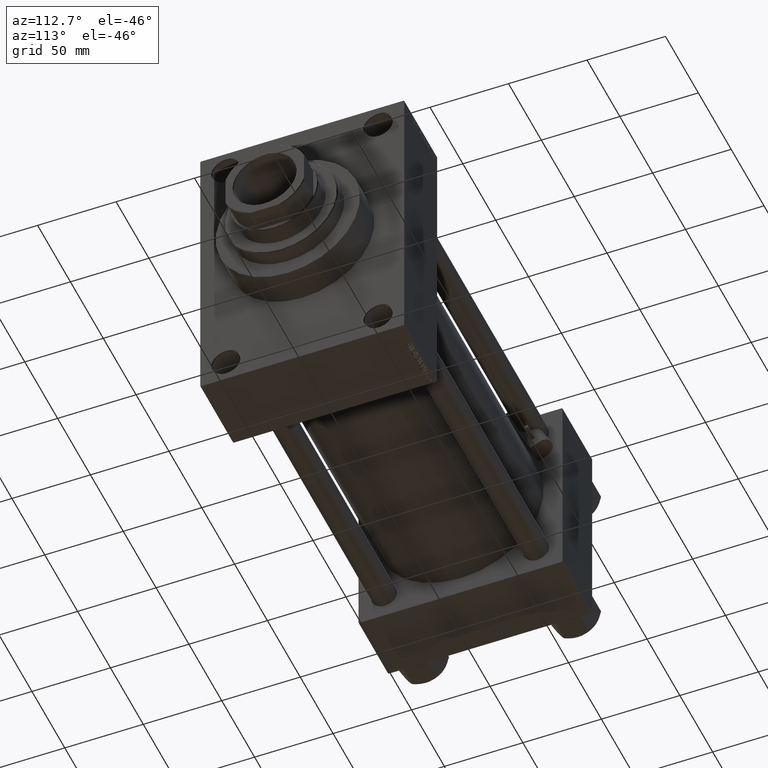
[diagram: clean part render]
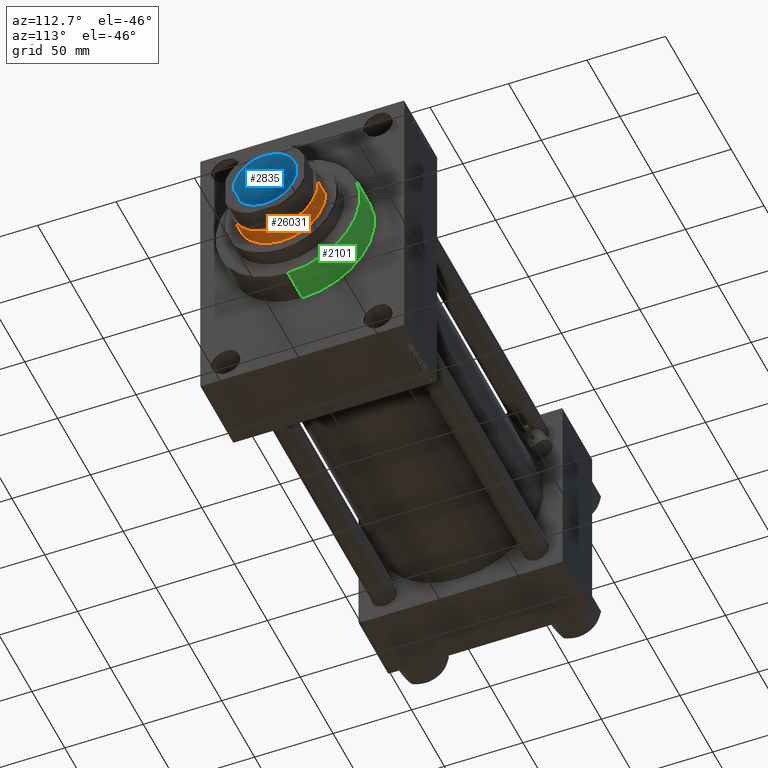
[diagram: same view with three faces highlighted in distinct colors, each labeled with its STEP entity id]
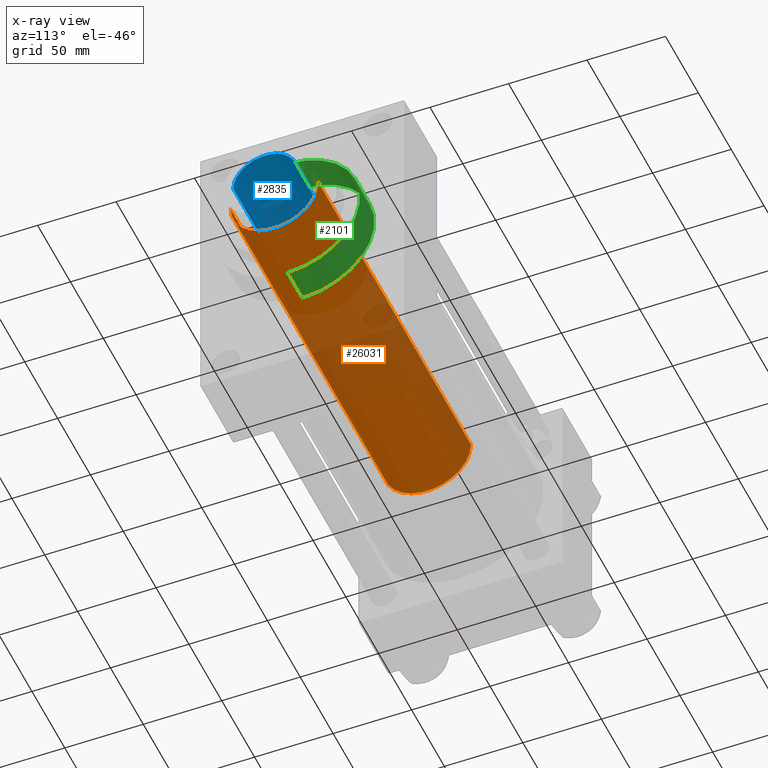
[diagram: x-ray of the same camera — body ghosted, the three highlighted faces saturated]
A machine part, auxiliary view with three faces highlighted in distinct colors.
The next image is the same camera in x-ray (body ghosted, the three faces saturated) — at least one of them is partly hidden behind the body in this view.
Their STEP definitions:

[orange] entity #26031 — the highlighted cylindrical surface (partial cylindrical patch) has radius 28 mm, axis along (-1, 0, 0).
#1910 = DIRECTION ( 'NONE',  ( 0.000000000000000000, 0.000000000000000000, -1.000000000000000000 ) ) ;
#2697 = AXIS2_PLACEMENT_3D ( 'NONE', #24136, #1910, #32269 ) ;
#4137 = EDGE_LOOP ( 'NONE', ( #16274, #10148, #30165, #12794 ) ) ;
#4336 = CARTESIAN_POINT ( 'NONE',  ( -28.00000000000000000, 0.000000000000000000, 284.0000000000000568 ) ) ;
#5909 = CIRCLE ( 'NONE', #45358, 28.00000000000000000 ) ;
#7107 = VECTOR ( 'NONE', #16470, 1000.000000000000000 ) ;
#7944 = DIRECTION ( 'NONE',  ( -1.000000000000000000, 0.000000000000000000, 0.000000000000000000 ) ) ;
#8530 = CARTESIAN_POINT ( 'NONE',  ( 0.000000000000000000, 0.000000000000000000, 51.00000000000000000 ) ) ;
#8579 = LINE ( 'NONE', #19921, #7107 ) ;
#10148 = ORIENTED_EDGE ( 'NONE', *, *, #31953, .T. ) ;
#10810 = CARTESIAN_POINT ( 'NONE',  ( -28.00000000000000000, 0.000000000000000000, 283.5000000000000568 ) ) ;
#12794 = ORIENTED_EDGE ( 'NONE', *, *, #26909, .F. ) ;
#13204 = DIRECTION ( 'NONE',  ( 0.000000000000000000, 0.000000000000000000, 1.000000000000000000 ) ) ;
#13517 = EDGE_CURVE ( 'NONE', #30155, #16124, #23163, .T. ) ;
#15830 = CARTESIAN_POINT ( 'NONE',  ( 28.00000000000000000, 3.429011037612589276E-15, 283.5000000000000568 ) ) ;
#16124 = VERTEX_POINT ( 'NONE', #15830 ) ;
#16274 = ORIENTED_EDGE ( 'NONE', *, *, #13517, .T. ) ;
#16470 = DIRECTION ( 'NONE',  ( -0.000000000000000000, -0.000000000000000000, -1.000000000000000000 ) ) ;
#19921 = CARTESIAN_POINT ( 'NONE',  ( 28.00000000000000000, 3.429011037612589276E-15, 284.0000000000000568 ) ) ;
#23163 = CIRCLE ( 'NONE', #2697, 28.00000000000000000 ) ;
#24136 = CARTESIAN_POINT ( 'NONE',  ( 0.000000000000000000, 0.000000000000000000, 283.5000000000000568 ) ) ;
#26031 = ADVANCED_FACE ( 'NONE', ( #33879 ), #26479, .T. ) ;
#26479 = CYLINDRICAL_SURFACE ( 'NONE', #37670, 28.00000000000000000 ) ;
#26909 = EDGE_CURVE ( 'NONE', #30155, #37064, #38165, .T. ) ;
#26967 = CARTESIAN_POINT ( 'NONE',  ( 0.000000000000000000, 0.000000000000000000, 284.0000000000000568 ) ) ;
#29810 = VECTOR ( 'NONE', #48790, 1000.000000000000000 ) ;
#29917 = CARTESIAN_POINT ( 'NONE',  ( 28.00000000000000000, 3.429011037612589276E-15, 51.00000000000000000 ) ) ;
#30155 = VERTEX_POINT ( 'NONE', #10810 ) ;
#30165 = ORIENTED_EDGE ( 'NONE', *, *, #46681, .T. ) ;
#31953 = EDGE_CURVE ( 'NONE', #16124, #34717, #8579, .T. ) ;
#32269 = DIRECTION ( 'NONE',  ( 1.000000000000000000, 0.000000000000000000, 0.000000000000000000 ) ) ;
#32311 = CARTESIAN_POINT ( 'NONE',  ( -28.00000000000000000, 0.000000000000000000, 51.00000000000000000 ) ) ;
#33879 = FACE_OUTER_BOUND ( 'NONE', #4137, .T. ) ;
#34717 = VERTEX_POINT ( 'NONE', #29917 ) ;
#37064 = VERTEX_POINT ( 'NONE', #32311 ) ;
#37670 = AXIS2_PLACEMENT_3D ( 'NONE', #26967, #45730, #7944 ) ;
#38165 = LINE ( 'NONE', #4336, #29810 ) ;
#42835 = DIRECTION ( 'NONE',  ( 1.000000000000000000, 0.000000000000000000, 0.000000000000000000 ) ) ;
#45358 = AXIS2_PLACEMENT_3D ( 'NONE', #8530, #13204, #42835 ) ;
#45730 = DIRECTION ( 'NONE',  ( -0.000000000000000000, -0.000000000000000000, -1.000000000000000000 ) ) ;
#46681 = EDGE_CURVE ( 'NONE', #34717, #37064, #5909, .T. ) ;
#48790 = DIRECTION ( 'NONE',  ( -0.000000000000000000, -0.000000000000000000, -1.000000000000000000 ) ) ;

[blue] entity #2835 — the highlighted cylindrical surface (edge-blend (fillet) strip) has radius 20.25 mm, axis along (1, 0, 0).
#161 = VERTEX_POINT ( 'NONE', #38920 ) ;
#208 = AXIS2_PLACEMENT_3D ( 'NONE', #3826, #7780, #15440 ) ;
#568 = AXIS2_PLACEMENT_3D ( 'NONE', #9095, #34785, #34544 ) ;
#1746 = CARTESIAN_POINT ( 'NONE',  ( -20.24999999999998934, 2.479909768273389117E-15, 237.0000000000000568 ) ) ;
#2835 = ADVANCED_FACE ( 'NONE', ( #45031 ), #26035, .F. ) ;
#3339 = CIRCLE ( 'NONE', #208, 20.24999999999998934 ) ;
#3826 = CARTESIAN_POINT ( 'NONE',  ( 0.000000000000000000, 0.000000000000000000, 237.0000000000000568 ) ) ;
#5798 = VECTOR ( 'NONE', #31310, 1000.000000000000000 ) ;
#7780 = DIRECTION ( 'NONE',  ( -0.000000000000000000, -0.000000000000000000, 1.000000000000000000 ) ) ;
#9095 = CARTESIAN_POINT ( 'NONE',  ( 0.000000000000000000, 0.000000000000000000, 297.7000000000000455 ) ) ;
#10226 = VERTEX_POINT ( 'NONE', #39511 ) ;
#11419 = DIRECTION ( 'NONE',  ( -0.000000000000000000, -0.000000000000000000, 1.000000000000000000 ) ) ;
#12204 = EDGE_CURVE ( 'NONE', #16237, #28230, #30179, .T. ) ;
#12240 = ORIENTED_EDGE ( 'NONE', *, *, #13386, .F. ) ;
#12772 = CARTESIAN_POINT ( 'NONE',  ( 20.24999999999999289, 0.000000000000000000, 298.0000000000000568 ) ) ;
#13386 = EDGE_CURVE ( 'NONE', #10226, #161, #34274, .T. ) ;
#15440 = DIRECTION ( 'NONE',  ( 1.000000000000000000, 0.000000000000000000, 0.000000000000000000 ) ) ;
#16237 = VERTEX_POINT ( 'NONE', #1746 ) ;
#16852 = CARTESIAN_POINT ( 'NONE',  ( -20.24999999999999289, 2.479909768273389511E-15, 297.7000000000000455 ) ) ;
#16868 = AXIS2_PLACEMENT_3D ( 'NONE', #29979, #45286, #38116 ) ;
#18562 = ORIENTED_EDGE ( 'NONE', *, *, #12204, .T. ) ;
#24247 = CIRCLE ( 'NONE', #568, 20.24999999999999289 ) ;
#25199 = EDGE_CURVE ( 'NONE', #28230, #161, #24247, .T. ) ;
#25437 = ORIENTED_EDGE ( 'NONE', *, *, #25199, .T. ) ;
#26035 = CYLINDRICAL_SURFACE ( 'NONE', #16868, 20.24999999999999289 ) ;
#28230 = VERTEX_POINT ( 'NONE', #16852 ) ;
#29979 = CARTESIAN_POINT ( 'NONE',  ( 0.000000000000000000, 0.000000000000000000, 298.0000000000000568 ) ) ;
#30179 = LINE ( 'NONE', #45246, #48357 ) ;
#31310 = DIRECTION ( 'NONE',  ( -0.000000000000000000, -0.000000000000000000, 1.000000000000000000 ) ) ;
#32534 = EDGE_LOOP ( 'NONE', ( #36502, #18562, #25437, #12240 ) ) ;
#34274 = LINE ( 'NONE', #12772, #5798 ) ;
#34544 = DIRECTION ( 'NONE',  ( 1.000000000000000000, 0.000000000000000000, 0.000000000000000000 ) ) ;
#34785 = DIRECTION ( 'NONE',  ( 0.000000000000000000, 0.000000000000000000, 1.000000000000000000 ) ) ;
#36502 = ORIENTED_EDGE ( 'NONE', *, *, #40695, .F. ) ;
#38116 = DIRECTION ( 'NONE',  ( 1.000000000000000000, 0.000000000000000000, 0.000000000000000000 ) ) ;
#38920 = CARTESIAN_POINT ( 'NONE',  ( 20.24999999999999289, 0.000000000000000000, 297.7000000000000455 ) ) ;
#39511 = CARTESIAN_POINT ( 'NONE',  ( 20.24999999999998934, 0.000000000000000000, 237.0000000000000568 ) ) ;
#40695 = EDGE_CURVE ( 'NONE', #16237, #10226, #3339, .T. ) ;
#45031 = FACE_OUTER_BOUND ( 'NONE', #32534, .T. ) ;
#45246 = CARTESIAN_POINT ( 'NONE',  ( -20.24999999999999289, 2.479909768273389511E-15, 298.0000000000000568 ) ) ;
#45286 = DIRECTION ( 'NONE',  ( -0.000000000000000000, -0.000000000000000000, 1.000000000000000000 ) ) ;
#48357 = VECTOR ( 'NONE', #11419, 1000.000000000000000 ) ;

[green] entity #2101 — the highlighted cylindrical surface (partial cylindrical patch) has radius 46 mm, axis along (-1, -0, -0).
#37 = VERTEX_POINT ( 'NONE', #6435 ) ;
#2101 = ADVANCED_FACE ( 'NONE', ( #23668 ), #17217, .T. ) ;
#3571 = CARTESIAN_POINT ( 'NONE',  ( 308.0000000000000000, 0.000000000000000000, 46.00000000000000000 ) ) ;
#5877 = CIRCLE ( 'NONE', #16135, 46.00000000000000000 ) ;
#5912 = VECTOR ( 'NONE', #48405, 1000.000000000000000 ) ;
#6435 = CARTESIAN_POINT ( 'NONE',  ( 286.0000000000000000, 0.000000000000000000, 46.00000000000000000 ) ) ;
#7265 = LINE ( 'NONE', #3571, #39081 ) ;
#10944 = DIRECTION ( 'NONE',  ( 1.000000000000000000, 0.000000000000000000, 0.000000000000000000 ) ) ;
#11180 = DIRECTION ( 'NONE',  ( 0.000000000000000000, 0.000000000000000000, -1.000000000000000000 ) ) ;
#13772 = CARTESIAN_POINT ( 'NONE',  ( 308.0000000000000000, 0.000000000000000000, 0.000000000000000000 ) ) ;
#15835 = ORIENTED_EDGE ( 'NONE', *, *, #21552, .T. ) ;
#16135 = AXIS2_PLACEMENT_3D ( 'NONE', #44775, #10944, #11180 ) ;
#17217 = CYLINDRICAL_SURFACE ( 'NONE', #30261, 46.00000000000000000 ) ;
#17886 = EDGE_CURVE ( 'NONE', #35085, #37, #7265, .T. ) ;
#20268 = EDGE_CURVE ( 'NONE', #34069, #33587, #37538, .T. ) ;
#21552 = EDGE_CURVE ( 'NONE', #33587, #37, #39077, .T. ) ;
#21658 = DIRECTION ( 'NONE',  ( -1.000000000000000000, -0.000000000000000000, -0.000000000000000000 ) ) ;
#23668 = FACE_OUTER_BOUND ( 'NONE', #38135, .T. ) ;
#27354 = CARTESIAN_POINT ( 'NONE',  ( 286.0000000000000000, 0.000000000000000000, 0.000000000000000000 ) ) ;
#28247 = DIRECTION ( 'NONE',  ( 0.000000000000000000, 0.000000000000000000, -1.000000000000000000 ) ) ;
#30261 = AXIS2_PLACEMENT_3D ( 'NONE', #13772, #21658, #47342 ) ;
#31196 = ORIENTED_EDGE ( 'NONE', *, *, #45894, .F. ) ;
#32172 = ORIENTED_EDGE ( 'NONE', *, *, #17886, .F. ) ;
#33109 = CARTESIAN_POINT ( 'NONE',  ( 308.0000000000000000, 5.633375276077824704E-15, -46.00000000000000000 ) ) ;
#33587 = VERTEX_POINT ( 'NONE', #37101 ) ;
#34069 = VERTEX_POINT ( 'NONE', #37163 ) ;
#35085 = VERTEX_POINT ( 'NONE', #45654 ) ;
#37101 = CARTESIAN_POINT ( 'NONE',  ( 286.0000000000000000, 5.633375276077824704E-15, -46.00000000000000000 ) ) ;
#37163 = CARTESIAN_POINT ( 'NONE',  ( 308.0000000000000000, 5.633375276077824704E-15, -46.00000000000000000 ) ) ;
#37538 = LINE ( 'NONE', #33109, #5912 ) ;
#37889 = DIRECTION ( 'NONE',  ( -1.000000000000000000, -0.000000000000000000, -0.000000000000000000 ) ) ;
#38135 = EDGE_LOOP ( 'NONE', ( #31196, #39947, #15835, #32172 ) ) ;
#39077 = CIRCLE ( 'NONE', #43849, 46.00000000000000000 ) ;
#39081 = VECTOR ( 'NONE', #37889, 1000.000000000000000 ) ;
#39947 = ORIENTED_EDGE ( 'NONE', *, *, #20268, .T. ) ;
#42411 = DIRECTION ( 'NONE',  ( 1.000000000000000000, 0.000000000000000000, 0.000000000000000000 ) ) ;
#43849 = AXIS2_PLACEMENT_3D ( 'NONE', #27354, #42411, #28247 ) ;
#44775 = CARTESIAN_POINT ( 'NONE',  ( 308.0000000000000000, 0.000000000000000000, 0.000000000000000000 ) ) ;
#45654 = CARTESIAN_POINT ( 'NONE',  ( 308.0000000000000000, 0.000000000000000000, 46.00000000000000000 ) ) ;
#45894 = EDGE_CURVE ( 'NONE', #34069, #35085, #5877, .T. ) ;
#47342 = DIRECTION ( 'NONE',  ( 0.000000000000000000, 0.000000000000000000, 1.000000000000000000 ) ) ;
#48405 = DIRECTION ( 'NONE',  ( -1.000000000000000000, -0.000000000000000000, -0.000000000000000000 ) ) ;